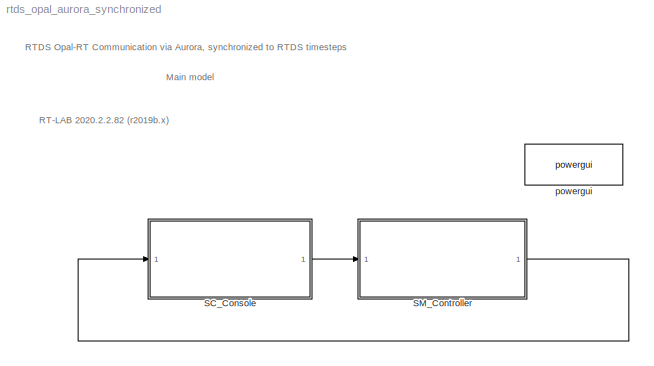
MODEL rtds_opal_aurora_synchronized
KIND model
CONFIG InitFcn = Ts=50e-6;
CONFIG PreLoadFcn = Ts=50e-6;
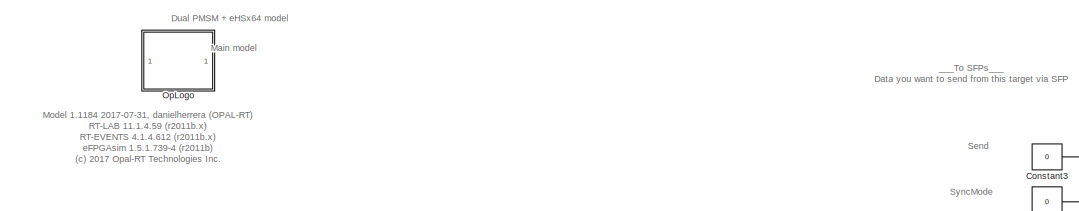
[diagram: SC_Console - part 1/3, full width, top band]
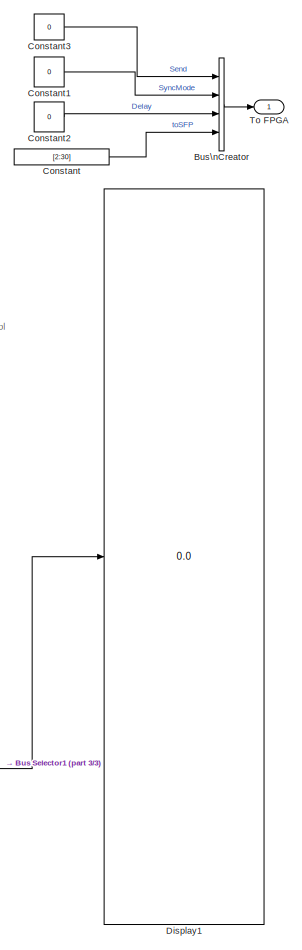
[diagram: SC_Console - part 2/3, middle right region]
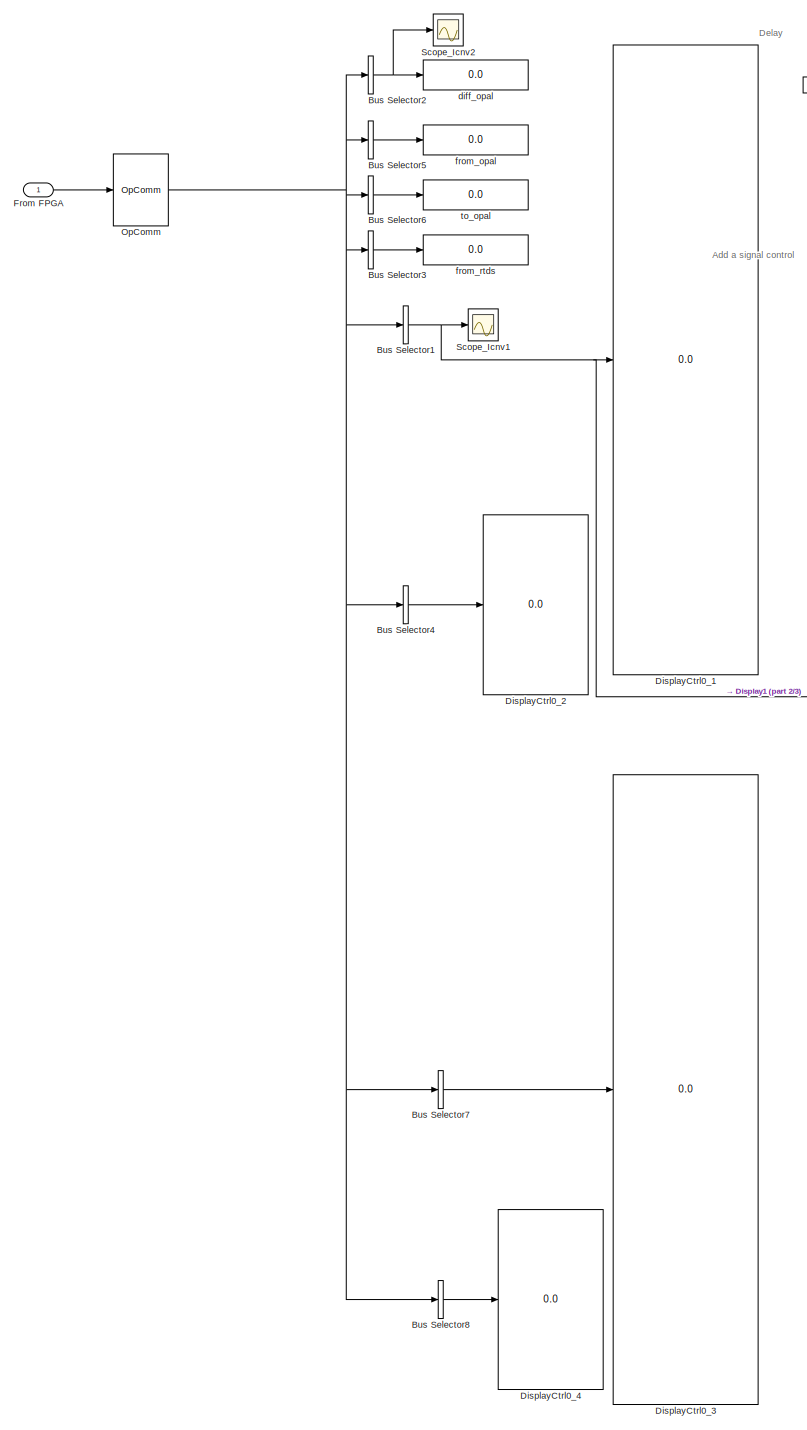
[diagram: SC_Console - part 3/3, center side, full height]
BLOCK [SubSystem] SC_Console
  Ports = [1, 1]
  RequestExecContextInheritance = off
  SID = 2
BLOCK [BusSelector] SC_Console/Bus Selector1
  OutputAsBus = on
  OutputSignals = SFP_RX_Data (signal 2)
  Ports = [1, 1]
  SID = 5
BLOCK [BusSelector] SC_Console/Bus Selector2
  OutputAsBus = on
  OutputSignals = diff_opal (signal 3)
  Ports = [1, 1]
  SID = 6
BLOCK [BusSelector] SC_Console/Bus Selector3
  OutputAsBus = on
  OutputSignals = from_rtds (signal 6)
  Ports = [1, 1]
  SID = 7
BLOCK [BusSelector] SC_Console/Bus Selector4
  OutputAsBus = on
  OutputSignals = SFP_Status (signal 1)
  Ports = [1, 1]
  SID = 8
BLOCK [BusSelector] SC_Console/Bus Selector5
  OutputAsBus = on
  OutputSignals = from_opal (signal 4)
  Ports = [1, 1]
  SID = 9
BLOCK [BusSelector] SC_Console/Bus Selector6
  OutputAsBus = on
  OutputSignals = to_opal (signal 5)
  Ports = [1, 1]
  SID = 10
BLOCK [BusSelector] SC_Console/Bus Selector7
  OutputAsBus = on
  OutputSignals = SFP_RX_Data (signal 8)
  Ports = [1, 1]
  SID = 266
BLOCK [BusSelector] SC_Console/Bus Selector8
  OutputAsBus = on
  OutputSignals = SFP_Status (signal 7)
  Ports = [1, 1]
  SID = 267
BLOCK [BusCreator] SC_Console/Bus\nCreator
  DisplayOption = bar
  InheritFromInputs = on
  Inputs = 4
  Ports = [4, 1]
  SID = 4
BLOCK [Constant] SC_Console/Constant
  SID = 11
  Value = [2:30]
BLOCK [Constant] SC_Console/Constant1
  OutDataTypeStr = double
  SID = 12
  Value = 0
BLOCK [Constant] SC_Console/Constant2
  OutDataTypeStr = double
  SID = 13
  Value = 0
BLOCK [Constant] SC_Console/Constant3
  OutDataTypeStr = double
  SID = 14
  Value = 0
BLOCK [Display] SC_Console/Display1
  Decimation = 1
  Ports = [1]
  SID = 15
BLOCK [Display] SC_Console/DisplayCtrl0_1
  Decimation = 1
  Format = long
  Ports = [1]
  SID = 16
BLOCK [Display] SC_Console/DisplayCtrl0_2
  Decimation = 1
  Ports = [1]
  SID = 17
BLOCK [Display] SC_Console/DisplayCtrl0_3
  Decimation = 1
  Format = long
  Ports = [1]
  SID = 264
BLOCK [Display] SC_Console/DisplayCtrl0_4
  Decimation = 1
  Ports = [1]
  SID = 265
BLOCK [Inport] SC_Console/From FPGA
  IconDisplay = Port number
  SID = 3
BLOCK [Reference] SC_Console/OpComm  REF=rtlab/OpComm
  Interpolation = on
  Missed_Data = off
  Offset = off
  Ports = [1, 1]
  SID = 18
  Samples = off
  Sim_Time = off
  SourceBlock = rtlab/OpComm
  SourceProductName = RT-LAB
  SourceType = RT-LAB OpComm
  Synchronization = on
  Threshold = 1.0
  dynSigOut = off
  from_console = 0
  groupe_acq = 1
  nbport = 1
  st = 0
  subsys_rate = 0
  warning_done = off
  writeOpCommFile = off
BLOCK [SubSystem] SC_Console/OpLogo
  Ports = []
  RequestExecContextInheritance = off
  SID = 19
BLOCK [Scope] SC_Console/Scope_Icnv1
  Floating = off
  NumInputPorts = 1
  Ports = [1]
  SID = 20
  ScopeSpecificationString = Simulink.scopes.TimeScopeBlockCfg('CurrentConfiguration', extmgr.ConfigurationSet(extmgr.Configuration('Core','General UI',true),extmgr.Configuration('Core','Source UI',true),extmgr.Configuration('Sources','WiredSimulink',true,'DataLoggingVariableName','ScopeData1','DataLoggingLimitDataPoints',true,'DataLoggingSaveFormat','Array','DataLoggingDecimation','1','DataLoggingDecimateData',true),extmgr.C...<+1639ch>
BLOCK [Scope] SC_Console/Scope_Icnv2
  Floating = off
  NumInputPorts = 1
  Ports = [1]
  SID = 21
  ScopeSpecificationString = Simulink.scopes.TimeScopeBlockCfg('CurrentConfiguration', extmgr.ConfigurationSet(extmgr.Configuration('Core','General UI',true),extmgr.Configuration('Core','Source UI',true),extmgr.Configuration('Sources','WiredSimulink',true,'DataLoggingVariableName','ScopeData1','DataLoggingLimitDataPoints',true,'DataLoggingSaveFormat','Array','DataLoggingDecimation','1','DataLoggingDecimateData',true),extmgr.C...<+1639ch>
BLOCK [Outport] SC_Console/To FPGA
  IconDisplay = Port number
  SID = 26
BLOCK [Display] SC_Console/diff_opal
  Decimation = 1
  Format = long
  Ports = [1]
  SID = 22
BLOCK [Display] SC_Console/from_opal
  Decimation = 1
  Format = long
  Ports = [1]
  SID = 23
BLOCK [Display] SC_Console/from_rtds
  Decimation = 1
  Format = long
  Ports = [1]
  SID = 24
BLOCK [Display] SC_Console/to_opal
  Decimation = 1
  Format = long
  Ports = [1]
  SID = 25
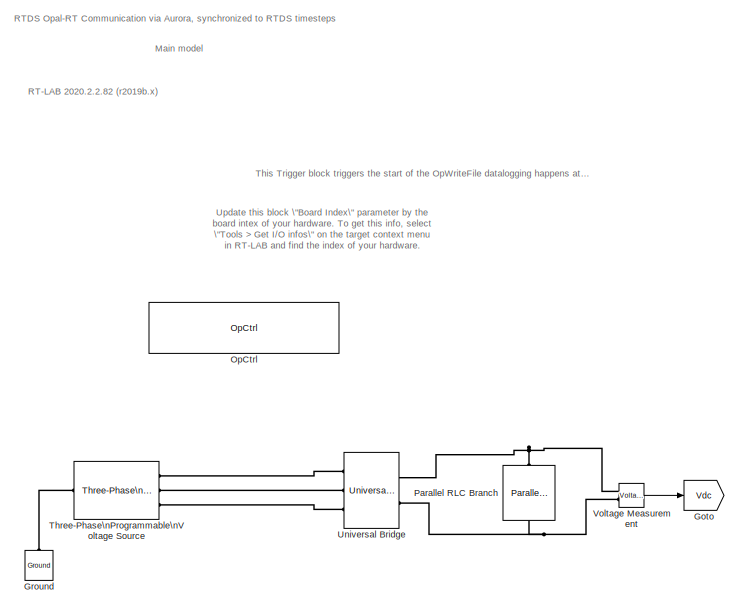
[diagram: SM_Controller - part 1/3, top center region]
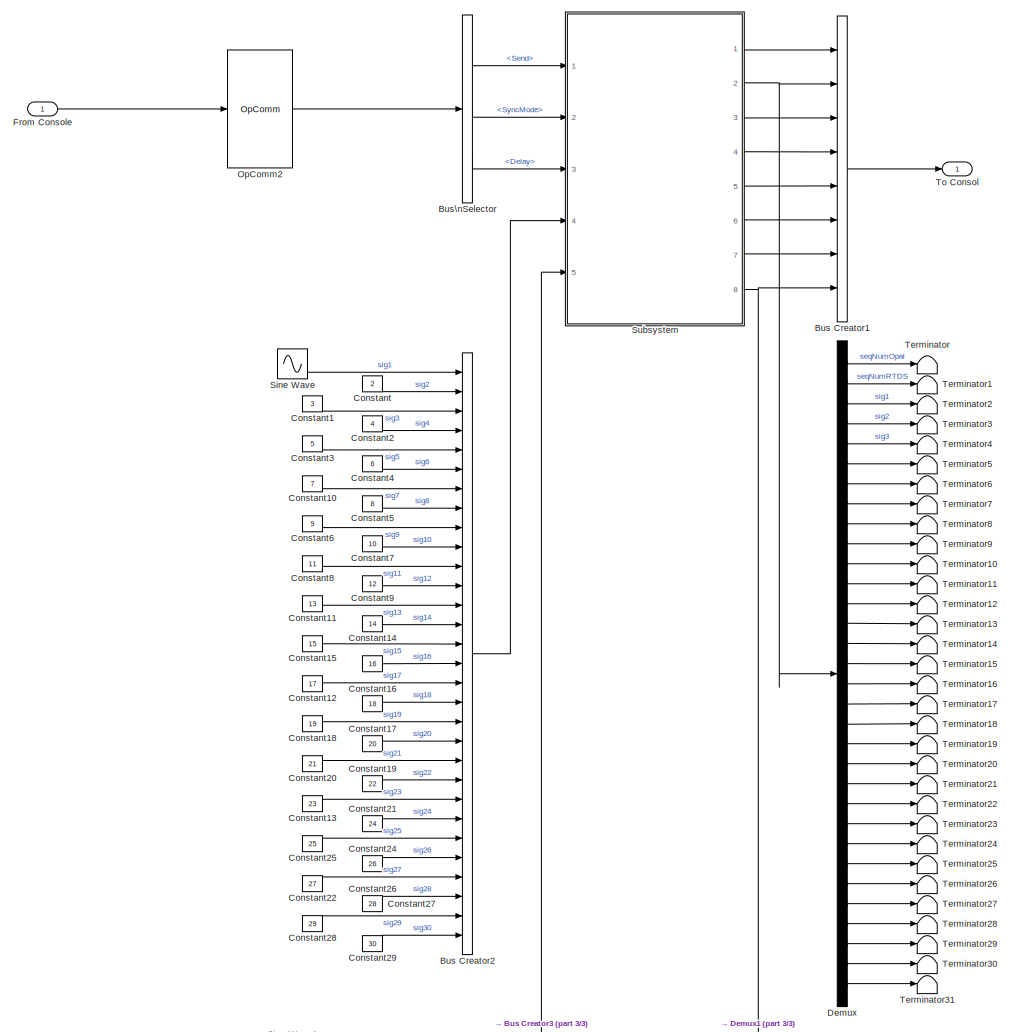
[diagram: SM_Controller - part 2/3, full width, middle band]
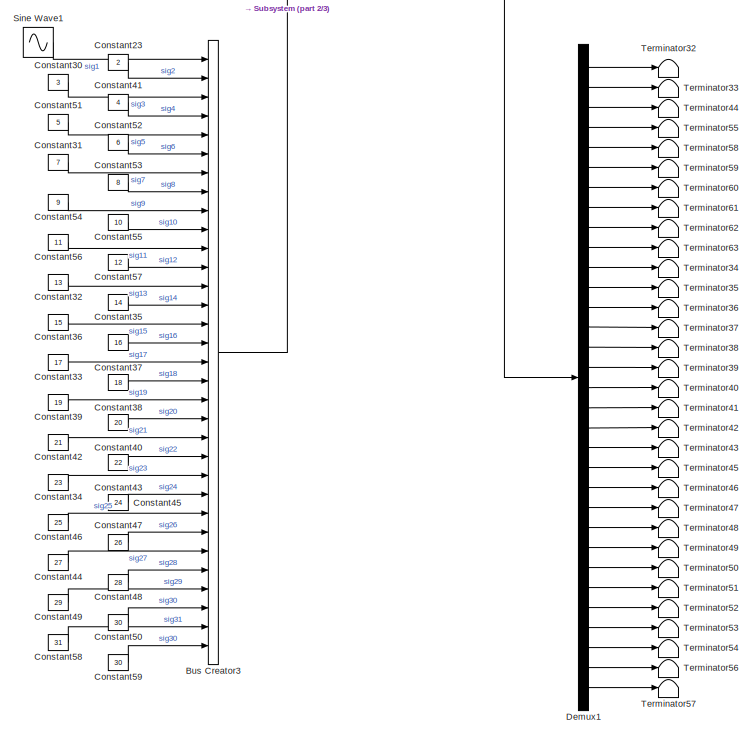
[diagram: SM_Controller - part 3/3, full width, bottom band]
BLOCK [SubSystem] SM_Controller
  Ports = [1, 1]
  RequestExecContextInheritance = off
  SID = 35
BLOCK [BusCreator] SM_Controller/Bus Creator1
  DisplayOption = bar
  InheritFromInputs = on
  Inputs = 8
  Ports = [8, 1]
  SID = 39
BLOCK [BusCreator] SM_Controller/Bus Creator2
  DisplayOption = bar
  InheritFromInputs = on
  Inputs = 30
  Ports = [30, 1]
  SID = 98
BLOCK [BusCreator] SM_Controller/Bus Creator3
  DisplayOption = bar
  InheritFromInputs = on
  Inputs = 32
  Ports = [32, 1]
  SID = 200
BLOCK [BusSelector] SM_Controller/Bus\nSelector
  OutputAsBus = off
  OutputSignals = Send,SyncMode,Delay
  Ports = [1, 3]
  SID = 38
BLOCK [Constant] SM_Controller/Constant
  SID = 100
  Value = 2
BLOCK [Constant] SM_Controller/Constant1
  SID = 101
  Value = 3
BLOCK [Constant] SM_Controller/Constant10
  SID = 110
  Value = 7
BLOCK [Constant] SM_Controller/Constant11
  SID = 111
  Value = 13
BLOCK [Constant] SM_Controller/Constant12
  SID = 122
  Value = 17
BLOCK [Constant] SM_Controller/Constant13
  SID = 123
  Value = 23
BLOCK [Constant] SM_Controller/Constant14
  SID = 124
  Value = 14
BLOCK [Constant] SM_Controller/Constant15
  SID = 125
  Value = 15
BLOCK [Constant] SM_Controller/Constant16
  SID = 126
  Value = 16
BLOCK [Constant] SM_Controller/Constant17
  SID = 127
  Value = 18
BLOCK [Constant] SM_Controller/Constant18
  SID = 128
  Value = 19
BLOCK [Constant] SM_Controller/Constant19
  SID = 129
  Value = 20
BLOCK [Constant] SM_Controller/Constant2
  SID = 102
  Value = 4
BLOCK [Constant] SM_Controller/Constant20
  SID = 130
  Value = 21
BLOCK [Constant] SM_Controller/Constant21
  SID = 131
  Value = 22
BLOCK [Constant] SM_Controller/Constant22
  SID = 142
  Value = 27
BLOCK [Constant] SM_Controller/Constant23
  SID = 201
  Value = 2
BLOCK [Constant] SM_Controller/Constant24
  SID = 144
  Value = 24
BLOCK [Constant] SM_Controller/Constant25
  SID = 145
  Value = 25
BLOCK [Constant] SM_Controller/Constant26
  SID = 146
  Value = 26
BLOCK [Constant] SM_Controller/Constant27
  SID = 147
  Value = 28
BLOCK [Constant] SM_Controller/Constant28
  SID = 148
  Value = 29
BLOCK [Constant] SM_Controller/Constant29
  SID = 278
  Value = 30
BLOCK [Constant] SM_Controller/Constant3
  SID = 103
  Value = 5
BLOCK [Constant] SM_Controller/Constant30
  SID = 202
  Value = 3
BLOCK [Constant] SM_Controller/Constant31
  SID = 203
  Value = 7
BLOCK [Constant] SM_Controller/Constant32
  SID = 204
  Value = 13
BLOCK [Constant] SM_Controller/Constant33
  SID = 205
  Value = 17
BLOCK [Constant] SM_Controller/Constant34
  SID = 206
  Value = 23
BLOCK [Constant] SM_Controller/Constant35
  SID = 207
  Value = 14
BLOCK [Constant] SM_Controller/Constant36
  SID = 208
  Value = 15
BLOCK [Constant] SM_Controller/Constant37
  SID = 209
  Value = 16
BLOCK [Constant] SM_Controller/Constant38
  SID = 210
  Value = 18
BLOCK [Constant] SM_Controller/Constant39
  SID = 211
  Value = 19
BLOCK [Constant] SM_Controller/Constant4
  SID = 104
  Value = 6
BLOCK [Constant] SM_Controller/Constant40
  SID = 212
  Value = 20
BLOCK [Constant] SM_Controller/Constant41
  SID = 213
  Value = 4
BLOCK [Constant] SM_Controller/Constant42
  SID = 214
  Value = 21
BLOCK [Constant] SM_Controller/Constant43
  SID = 215
  Value = 22
BLOCK [Constant] SM_Controller/Constant44
  SID = 216
  Value = 27
BLOCK [Constant] SM_Controller/Constant45
  SID = 217
  Value = 24
BLOCK [Constant] SM_Controller/Constant46
  SID = 218
  Value = 25
BLOCK [Constant] SM_Controller/Constant47
  SID = 219
  Value = 26
BLOCK [Constant] SM_Controller/Constant48
  SID = 220
  Value = 28
BLOCK [Constant] SM_Controller/Constant49
  SID = 221
  Value = 29
BLOCK [Constant] SM_Controller/Constant5
  SID = 105
  Value = 8
BLOCK [Constant] SM_Controller/Constant50
  SID = 222
  Value = 30
BLOCK [Constant] SM_Controller/Constant51
  SID = 223
  Value = 5
BLOCK [Constant] SM_Controller/Constant52
  SID = 224
  Value = 6
BLOCK [Constant] SM_Controller/Constant53
  SID = 225
  Value = 8
BLOCK [Constant] SM_Controller/Constant54
  SID = 226
  Value = 9
BLOCK [Constant] SM_Controller/Constant55
  SID = 227
  Value = 10
BLOCK [Constant] SM_Controller/Constant56
  SID = 228
  Value = 11
BLOCK [Constant] SM_Controller/Constant57
  SID = 229
  Value = 12
BLOCK [Constant] SM_Controller/Constant58
  SID = 268
  Value = 31
BLOCK [Constant] SM_Controller/Constant59
  SID = 269
  Value = 30
BLOCK [Constant] SM_Controller/Constant6
  SID = 106
  Value = 9
BLOCK [Constant] SM_Controller/Constant7
  SID = 107
  Value = 10
BLOCK [Constant] SM_Controller/Constant8
  SID = 108
  Value = 11
BLOCK [Constant] SM_Controller/Constant9
  SID = 109
  Value = 12
BLOCK [Demux] SM_Controller/Demux
  DisplayOption = bar
  Outputs = 32
  Ports = [1, 32]
  SID = 154
BLOCK [Demux] SM_Controller/Demux1
  DisplayOption = bar
  Outputs = 32
  Ports = [1, 32]
  SID = 231
BLOCK [Inport] SM_Controller/From Console
  IconDisplay = Port number
  SID = 36
BLOCK [Goto] SM_Controller/Goto
  GotoTag = Vdc
  SID = 54
BLOCK [Reference] SM_Controller/Ground  REF=powerlib/Elements/Ground
  LConnTagsString = a
  Ports = [0, 0, 0, 0, 0, 1]
  SID = 55
  SourceBlock = powerlib/Elements/Ground
  SourceProductBaseCode = PS
  SourceProductName = Simscape Electrical
  SourceType = Ground
BLOCK [Reference] SM_Controller/OpComm2  REF=rtlab/OpComm
  Interpolation = on
  Missed_Data = off
  Offset = off
  Ports = [1, 1]
  SID = 59
  Samples = off
  Sim_Time = off
  SourceBlock = rtlab/OpComm
  SourceProductName = RT-LAB
  SourceType = RT-LAB OpComm
  Synchronization = on
  Threshold = 1.0
  dynSigOut = off
  from_console = 1
  groupe_acq = 1
  nbport = 1
  st = 0
  subsys_rate = Ts
  warning_done = off
  writeOpCommFile = off
BLOCK [Reference] SM_Controller/OpCtrl  REF=rtio_opalrt_common/OpCtrl
  BitstreamFilename = <path>
  BoardType = VC707
  CtrlName = 'OpCtrl'
  MultiThreadCoSim = auto
  Ports = [0, 2]
  SID = 60
  SampleTime = 0
  SecondaryPresent = off
  SourceBlock = rtio_opalrt_common/OpCtrl
  SourceType = OpCtrlCommonMask
  boardid = 0
  calibIO = off
  decimRtsi = 0
  externalClock = off
  fsdFileName = VC707_2-EX-0001-3_2_10_45-DUALSFP-02-24.fsd
  loadinport = -1
  mode = Master with external clock
  numconfig = -1
  scope_enable = off
  sync_type = Optical fiber
BLOCK [Reference] SM_Controller/Parallel RLC Branch  REF=powerlib/Elements/Parallel RLC Branch
  AttributesFormatString = \\n
  BranchType = RC
  Capacitance = 10e-3
  Inductance = 1e-3
  InitialCurrent = 0
  InitialVoltage = 0
  LConnTagsString = a
  Measurements = None
  Ports = [0, 0, 0, 0, 0, 1, 1]
  RConnTagsString = __new0
  Resistance = 100
  SID = 62
  SetiL0 = off
  Setx0 = off
  SourceBlock = powerlib/Elements/Parallel RLC Branch
  SourceProductBaseCode = PS
  SourceProductName = Simscape Electrical
  SourceType = Parallel RLC Branch
BLOCK [Sin] SM_Controller/Sine Wave
  Amplitude = 10
  Frequency = 50*pi*2
  Ports = [0, 1]
  SID = 65
  SampleTime = 0
BLOCK [Sin] SM_Controller/Sine Wave1
  Amplitude = 10
  Frequency = 50*pi*2
  Ports = [0, 1]
  SID = 230
  SampleTime = 0
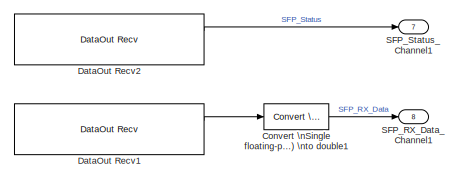
[diagram: SM_Controller/Subsystem - part 1/3, top left region]
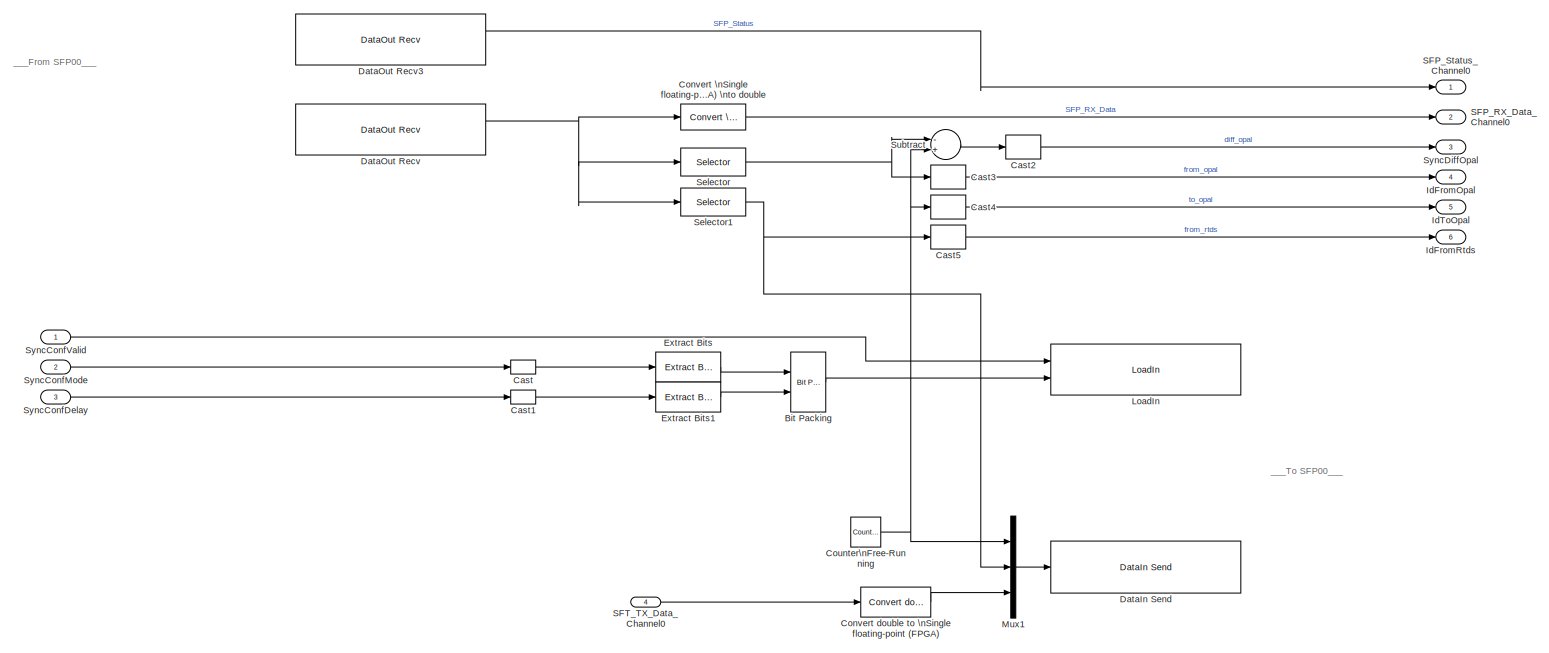
[diagram: SM_Controller/Subsystem - part 2/3, full width, middle band]
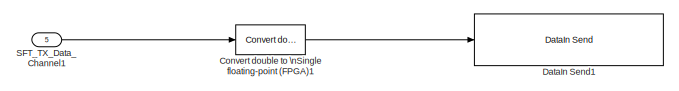
[diagram: SM_Controller/Subsystem - part 3/3, bottom center region]
BLOCK [SubSystem] SM_Controller/Subsystem
  Ports = [5, 8]
  RequestExecContextInheritance = off
  SID = 82
BLOCK [Reference] SM_Controller/Subsystem/Bit Packing   REF=xpcutilitieslib/Bit Packing 
  MaskBitPatterns = {[0:2] [3:22]}
  MaskPackDataSize = [1]
  MaskPackDataType = uint32
  MultiThreadCoSim = auto
  Ports = [2, 1]
  SID = 37
  SourceBlock = xpcutilitieslib/Bit Packing
  SourceProductBaseCode = XP
  SourceProductName = Simulink Real-Time
  SourceType = xpcbitpacking
BLOCK [DataTypeConversion] SM_Controller/Subsystem/Cast
  OutDataTypeStr = int8
  RndMeth = Floor
  SID = 40
  SaturateOnIntegerOverflow = off
BLOCK [DataTypeConversion] SM_Controller/Subsystem/Cast1
  OutDataTypeStr = uint32
  RndMeth = Floor
  SID = 41
  SaturateOnIntegerOverflow = off
BLOCK [DataTypeConversion] SM_Controller/Subsystem/Cast2
  OutDataTypeStr = double
  RndMeth = Floor
  SID = 42
  SaturateOnIntegerOverflow = off
BLOCK [DataTypeConversion] SM_Controller/Subsystem/Cast3
  OutDataTypeStr = double
  RndMeth = Floor
  SID = 43
  SaturateOnIntegerOverflow = off
BLOCK [DataTypeConversion] SM_Controller/Subsystem/Cast4
  OutDataTypeStr = double
  RndMeth = Floor
  SID = 44
  SaturateOnIntegerOverflow = off
BLOCK [DataTypeConversion] SM_Controller/Subsystem/Cast5
  OutDataTypeStr = double
  RndMeth = Floor
  SID = 45
  SaturateOnIntegerOverflow = off
BLOCK [Reference] SM_Controller/Subsystem/Convert \nSingle floating-point (FPGA) \nto double  REF=rtlab/Miscellaneous/Convert \nSingle floating-point (FPGA) \nto double
  MultiThreadCoSim = auto
  Ports = [1, 1]
  SID = 46
  SourceBlock = rtlab/Miscellaneous/Convert \nSingle floating-point (FPGA) \nto double
  SourceProductName = RT-LAB
  SourceType = Convert Single floating-point (FPGA) to double
BLOCK [Reference] SM_Controller/Subsystem/Convert \nSingle floating-point (FPGA) \nto double1  REF=rtlab/Miscellaneous/Convert \nSingle floating-point (FPGA) \nto double
  MultiThreadCoSim = auto
  Ports = [1, 1]
  SID = 199
  SourceBlock = rtlab/Miscellaneous/Convert \nSingle floating-point (FPGA) \nto double
  SourceProductName = RT-LAB
  SourceType = Convert Single floating-point (FPGA) to double
BLOCK [Reference] SM_Controller/Subsystem/Convert double to \nSingle floating-point (FPGA)  REF=rtlab/Miscellaneous/Convert double to \nSingle floating-point (FPGA)
  MultiThreadCoSim = auto
  Ports = [1, 1]
  SID = 47
  SourceBlock = rtlab/Miscellaneous/Convert double to \nSingle floating-point (FPGA)
  SourceProductName = RT-LAB
  SourceType = Convert double to Single floating-point (FPGA)
BLOCK [Reference] SM_Controller/Subsystem/Convert double to \nSingle floating-point (FPGA)1  REF=rtlab/Miscellaneous/Convert double to \nSingle floating-point (FPGA)
  MultiThreadCoSim = auto
  Ports = [1, 1]
  SID = 193
  SourceBlock = rtlab/Miscellaneous/Convert double to \nSingle floating-point (FPGA)
  SourceProductName = RT-LAB
  SourceType = Convert double to Single floating-point (FPGA)
BLOCK [Reference] SM_Controller/Subsystem/Counter\nFree-Running  REF=simulink/Sources/Counter\nFree-Running
  NumBits = 32
  Ports = [0, 1]
  SID = 48
  SourceBlock = simulink/Sources/Counter\nFree-Running
  SourceProductBaseCode = SL
  SourceProductName = Simulink
  SourceType = Counter Free-Running
  tsamp = Ts
BLOCK [Reference] SM_Controller/Subsystem/DataIn Send  REF=rtio_opalrt_common/DataIn Send
  AttributesFormatString = %<CtrlName>
  CtrlName = 'OpCtrl'
  FcnNos = 1
  MultiThreadCoSim = auto
  Ports = [1, 1]
  SID = 49
  SourceBlock = rtio_opalrt_common/DataIn Send
  SourceType = OpFcnCommonSend
  checkVersion = off
  expectedId = 0
  expectedVersion = 0
  opComp = >=
  portType = uint32
  width = 32
BLOCK [Reference] SM_Controller/Subsystem/DataIn Send1  REF=rtio_opalrt_common/DataIn Send
  AttributesFormatString = %<CtrlName>
  CtrlName = 'OpCtrl'
  FcnNos = 2
  MultiThreadCoSim = auto
  Ports = [1, 1]
  SID = 191
  SourceBlock = rtio_opalrt_common/DataIn Send
  SourceType = OpFcnCommonSend
  checkVersion = off
  expectedId = 0
  expectedVersion = 0
  opComp = >=
  portType = uint32
  width = 32
BLOCK [Reference] SM_Controller/Subsystem/DataOut Recv  REF=rtio_opalrt_common/DataOut Recv
  AttributesFormatString = %<CtrlName>
  CtrlName = 'OpCtrl'
  FcnNos = 1
  MultiThreadCoSim = auto
  Ports = [0, 2]
  SID = 50
  SourceBlock = rtio_opalrt_common/DataOut Recv
  SourceType = OpFcnCommonRecv
  checkVersion = off
  expectedId = 0
  expectedVersion = 0
  opComp = >=
  portType = uint32
  sampleTime = 0
  width = 32
BLOCK [Reference] SM_Controller/Subsystem/DataOut Recv1  REF=rtio_opalrt_common/DataOut Recv
  AttributesFormatString = %<CtrlName>
  CtrlName = 'OpCtrl'
  FcnNos = 3
  MultiThreadCoSim = auto
  Ports = [0, 2]
  SID = 195
  SourceBlock = rtio_opalrt_common/DataOut Recv
  SourceType = OpFcnCommonRecv
  checkVersion = off
  expectedId = 0
  expectedVersion = 0
  opComp = >=
  portType = uint32
  sampleTime = 0
  width = 32
BLOCK [Reference] SM_Controller/Subsystem/DataOut Recv2  REF=rtio_opalrt_common/DataOut Recv
  AttributesFormatString = %<CtrlName>
  CtrlName = 'OpCtrl'
  FcnNos = 4
  MultiThreadCoSim = auto
  Ports = [0, 2]
  SID = 196
  SourceBlock = rtio_opalrt_common/DataOut Recv
  SourceType = OpFcnCommonRecv
  checkVersion = off
  expectedId = 0
  expectedVersion = 0
  opComp = >=
  portType = double
  sampleTime = 0
  width = 5
BLOCK [Reference] SM_Controller/Subsystem/DataOut Recv3  REF=rtio_opalrt_common/DataOut Recv
  AttributesFormatString = %<CtrlName>
  CtrlName = 'OpCtrl'
  FcnNos = 2
  MultiThreadCoSim = auto
  Ports = [0, 2]
  SID = 51
  SourceBlock = rtio_opalrt_common/DataOut Recv
  SourceType = OpFcnCommonRecv
  checkVersion = off
  expectedId = 0
  expectedVersion = 0
  opComp = >=
  portType = double
  sampleTime = 0
  width = 5
BLOCK [Reference] SM_Controller/Subsystem/Extract Bits  REF=simulink/Logic and Bit\nOperations/Extract Bits
  Ports = [1, 1]
  SID = 52
  SourceBlock = simulink/Logic and Bit\nOperations/Extract Bits
  SourceProductBaseCode = SL
  SourceProductName = Simulink
  SourceType = Extract Bits
  bitIdxRange = [0 7]
  bitsToExtract = Range ending with least significant bit
  numBits = 3
  outScalingMode = Treat bit field as an integer
BLOCK [Reference] SM_Controller/Subsystem/Extract Bits1  REF=simulink/Logic and Bit\nOperations/Extract Bits
  Ports = [1, 1]
  SID = 53
  SourceBlock = simulink/Logic and Bit\nOperations/Extract Bits
  SourceProductBaseCode = SL
  SourceProductName = Simulink
  SourceType = Extract Bits
  bitIdxRange = [0 7]
  bitsToExtract = Range ending with least significant bit
  numBits = 20
  outScalingMode = Treat bit field as an integer
BLOCK [Outport] SM_Controller/Subsystem/IdFromOpal
  IconDisplay = Port number
  Port = 4
  SID = 92
BLOCK [Outport] SM_Controller/Subsystem/IdFromRtds
  IconDisplay = Port number
  Port = 6
  SID = 94
BLOCK [Outport] SM_Controller/Subsystem/IdToOpal
  IconDisplay = Port number
  Port = 5
  SID = 93
BLOCK [Reference] SM_Controller/Subsystem/LoadIn  REF=rtio_opalrt_common/LoadIn
  AttributesFormatString = %<CtrlName>
  CtrlName = 'OpCtrl'
  FcnNos = 1
  MultiThreadCoSim = auto
  Ports = [2, 1]
  SID = 56
  SourceBlock = rtio_opalrt_common/LoadIn
  SourceType = OpFcnCommonLoadIn
  portType = uint32
  width = 1
BLOCK [Mux] SM_Controller/Subsystem/Mux1
  DisplayOption = bar
  Inputs = 3
  Ports = [3, 1]
  SID = 57
BLOCK [Outport] SM_Controller/Subsystem/SFP_RX_Data_Channel0
  IconDisplay = Port number
  Port = 2
  SID = 89
BLOCK [Outport] SM_Controller/Subsystem/SFP_RX_Data_Channel1
  IconDisplay = Port number
  Port = 8
  SID = 198
BLOCK [Outport] SM_Controller/Subsystem/SFP_Status_Channel0
  IconDisplay = Port number
  SID = 88
BLOCK [Outport] SM_Controller/Subsystem/SFP_Status_Channel1
  IconDisplay = Port number
  Port = 7
  SID = 197
BLOCK [Inport] SM_Controller/Subsystem/SFT_TX_Data_Channel0
  IconDisplay = Port number
  Port = 4
  SID = 86
BLOCK [Inport] SM_Controller/Subsystem/SFT_TX_Data_Channel1
  IconDisplay = Port number
  Port = 5
  SID = 192
BLOCK [Selector] SM_Controller/Subsystem/Selector
  IndexOptions = Index vector (dialog)
  Indices = [1]
  InputPortWidth = 32
  OutputSizes = 1
  Ports = [1, 1]
  SID = 63
BLOCK [Selector] SM_Controller/Subsystem/Selector1
  IndexOptions = Index vector (dialog)
  Indices = [32]
  InputPortWidth = 32
  OutputSizes = 1
  Ports = [1, 1]
  SID = 64
BLOCK [Sum] SM_Controller/Subsystem/Subtract
  InputSameDT = off
  Inputs = -+
  OutDataTypeStr = Inherit: Inherit via internal rule
  Ports = [2, 1]
  SID = 66
  SaturateOnIntegerOverflow = off
BLOCK [Inport] SM_Controller/Subsystem/SyncConfDelay
  IconDisplay = Port number
  Port = 3
  SID = 85
BLOCK [Inport] SM_Controller/Subsystem/SyncConfMode
  IconDisplay = Port number
  Port = 2
  SID = 84
BLOCK [Inport] SM_Controller/Subsystem/SyncConfValid
  IconDisplay = Port number
  SID = 83
BLOCK [Outport] SM_Controller/Subsystem/SyncDiffOpal
  IconDisplay = Port number
  Port = 3
  SID = 91
BLOCK [Terminator] SM_Controller/Terminator
  SID = 159
BLOCK [Terminator] SM_Controller/Terminator1
  SID = 160
BLOCK [Terminator] SM_Controller/Terminator10
  SID = 169
BLOCK [Terminator] SM_Controller/Terminator11
  SID = 170
BLOCK [Terminator] SM_Controller/Terminator12
  SID = 171
BLOCK [Terminator] SM_Controller/Terminator13
  SID = 172
BLOCK [Terminator] SM_Controller/Terminator14
  SID = 173
BLOCK [Terminator] SM_Controller/Terminator15
  SID = 174
BLOCK [Terminator] SM_Controller/Terminator16
  SID = 175
BLOCK [Terminator] SM_Controller/Terminator17
  SID = 176
BLOCK [Terminator] SM_Controller/Terminator18
  SID = 177
BLOCK [Terminator] SM_Controller/Terminator19
  SID = 178
BLOCK [Terminator] SM_Controller/Terminator2
  SID = 161
BLOCK [Terminator] SM_Controller/Terminator20
  SID = 179
BLOCK [Terminator] SM_Controller/Terminator21
  SID = 180
BLOCK [Terminator] SM_Controller/Terminator22
  SID = 181
BLOCK [Terminator] SM_Controller/Terminator23
  SID = 182
BLOCK [Terminator] SM_Controller/Terminator24
  SID = 183
BLOCK [Terminator] SM_Controller/Terminator25
  SID = 184
BLOCK [Terminator] SM_Controller/Terminator26
  SID = 185
BLOCK [Terminator] SM_Controller/Terminator27
  SID = 186
BLOCK [Terminator] SM_Controller/Terminator28
  SID = 187
BLOCK [Terminator] SM_Controller/Terminator29
  SID = 188
BLOCK [Terminator] SM_Controller/Terminator3
  SID = 162
BLOCK [Terminator] SM_Controller/Terminator30
  SID = 189
BLOCK [Terminator] SM_Controller/Terminator31
  SID = 190
BLOCK [Terminator] SM_Controller/Terminator32
  SID = 232
BLOCK [Terminator] SM_Controller/Terminator33
  SID = 233
BLOCK [Terminator] SM_Controller/Terminator34
  SID = 234
BLOCK [Terminator] SM_Controller/Terminator35
  SID = 235
BLOCK [Terminator] SM_Controller/Terminator36
  SID = 236
BLOCK [Terminator] SM_Controller/Terminator37
  SID = 237
BLOCK [Terminator] SM_Controller/Terminator38
  SID = 238
BLOCK [Terminator] SM_Controller/Terminator39
  SID = 239
BLOCK [Terminator] SM_Controller/Terminator4
  SID = 163
BLOCK [Terminator] SM_Controller/Terminator40
  SID = 240
BLOCK [Terminator] SM_Controller/Terminator41
  SID = 241
BLOCK [Terminator] SM_Controller/Terminator42
  SID = 242
BLOCK [Terminator] SM_Controller/Terminator43
  SID = 243
BLOCK [Terminator] SM_Controller/Terminator44
  SID = 244
BLOCK [Terminator] SM_Controller/Terminator45
  SID = 245
BLOCK [Terminator] SM_Controller/Terminator46
  SID = 246
BLOCK [Terminator] SM_Controller/Terminator47
  SID = 247
BLOCK [Terminator] SM_Controller/Terminator48
  SID = 248
BLOCK [Terminator] SM_Controller/Terminator49
  SID = 249
BLOCK [Terminator] SM_Controller/Terminator5
  SID = 164
BLOCK [Terminator] SM_Controller/Terminator50
  SID = 250
BLOCK [Terminator] SM_Controller/Terminator51
  SID = 251
BLOCK [Terminator] SM_Controller/Terminator52
  SID = 252
BLOCK [Terminator] SM_Controller/Terminator53
  SID = 253
BLOCK [Terminator] SM_Controller/Terminator54
  SID = 254
BLOCK [Terminator] SM_Controller/Terminator55
  SID = 255
BLOCK [Terminator] SM_Controller/Terminator56
  SID = 256
BLOCK [Terminator] SM_Controller/Terminator57
  SID = 257
BLOCK [Terminator] SM_Controller/Terminator58
  SID = 258
BLOCK [Terminator] SM_Controller/Terminator59
  SID = 259
BLOCK [Terminator] SM_Controller/Terminator6
  SID = 165
BLOCK [Terminator] SM_Controller/Terminator60
  SID = 260
BLOCK [Terminator] SM_Controller/Terminator61
  SID = 261
BLOCK [Terminator] SM_Controller/Terminator62
  SID = 262
BLOCK [Terminator] SM_Controller/Terminator63
  SID = 263
BLOCK [Terminator] SM_Controller/Terminator7
  SID = 166
BLOCK [Terminator] SM_Controller/Terminator8
  SID = 167
BLOCK [Terminator] SM_Controller/Terminator9
  SID = 168
BLOCK [Reference] SM_Controller/Three-Phase\nProgrammable\nVoltage Source  REF=powerlib/Electrical\nSources/Three-Phase\nProgrammable\nVoltage Source
  Amplitudes = [1 0.8 1.2 1.0]
  BusType = swing
  HarmonicA = [3 0.2 -25 0]
  HarmonicB = [2 0.15 35 2]
  HarmonicGeneration = off
  Ports = [0, 0, 0, 0, 0, 1, 3]
  PositiveSequence = [90  0 60]
  Pref = 0
  Qmax = inf
  Qmin = -inf
  Qref = 0
  SID = 67
  SourceBlock = powerlib/Electrical\nSources/Three-Phase\nProgrammable\nVoltage Source
  SourceProductBaseCode = PS
  SourceProductName = Simscape Electrical
  SourceType = Three-Phase Programmable Voltage Source
  TimeValues = [0 0.1 0.15 0.2]
  Timing = [0.05  3]
  VariationEntity = None
  VariationFrequency = 2
  VariationMagnitude = 0.3
  VariationPhaseA = off
  VariationRate = 10
  VariationStep = 0.5
  VariationTiming = [1 2]
  VariationType = Table of time-amplitude pairs
  VariationTypeAlt = Step
BLOCK [Outport] SM_Controller/To Consol
  IconDisplay = Port number
  SID = 70
BLOCK [Reference] SM_Controller/Universal Bridge  REF=powerlib/Power\nElectronics/Universal Bridge
  Arms = 3
  Device = Diodes
  ForwardVoltage = 0
  ForwardVoltages = [  0  0  ]
  GTOparameters = [ 10e-6 , 20e-6 ]
  IGBTparameters = [ 1e-6 , 2e-6 ]
  Lon = 0
  Measurements = None
  Measurements_2 = None
  Ports = [0, 0, 0, 0, 0, 3, 2]
  Ron = 1e-3
  SID = 68
  SnubberCapacitance = inf
  SnubberResistance = 1e5
  SourceBlock = powerlib/Power\nElectronics/Universal Bridge
  SourceProductBaseCode = PS
  SourceProductName = Simscape Electrical
  SourceType = Universal Bridge
  converterType = Rectifier
BLOCK [Reference] SM_Controller/Voltage Measurement  REF=powerlib/Measurements/Voltage Measurement
  OutputType = Complex
  PSBequivalent = 0
  PhasorSimulation = off
  Ports = [0, 1, 0, 0, 0, 2]
  SID = 69
  SourceBlock = powerlib/Measurements/Voltage Measurement
  SourceProductBaseCode = PS
  SourceProductName = Simscape Electrical
  SourceType = Voltage Measurement
  UserDataPersistent = on
BLOCK [Reference] powergui  REF=powerlib/powergui
  AutomaticDiscreteSolvers = off
  ContinueOnMaxIteration = off
  CurrentSourceSwitches = off
  DisableRonSwitches = off
  DisableSnubberDevices = off
  DisableVfSwitches = off
  DisplayEquations = off
  DisplayStyle = 1
  EnableUseOfTLC = off
  ErrMax = 1e-4
  ExternalGateDelay = off
  Frange = [0:2:500]
  FreqAxis = off
  FunctionMessages = off
  HookPort = off
  Interpol = off
  Iterations = 50
  MaxFrequency = 1000
  NonlinearTolerance = 1e-4
  Pbase = 100e6
  Ports = []
  Priority = 1
  ResistiveCurrentMeasurement = off
  RestoreLinks = warning
  RmsSteady = 1
  SID = 78
  SPID = off
  SampleTime = Ts
  ShowGrid = off
  SolverType = Backward Euler
  SourceBlock = powerlib/powergui
  SourceProductBaseCode = PS
  SourceProductName = Simscape Electrical
  SourceType = PSB option menu block
  StartTime = 0.0
  SwTol = 0
  Ts = 0
  UnitsV = kV
  UnitsW = MW
  Xlog = on
  Ylog = off
  ZoomFFT = off
  buscounter = 0
  cycles = 1
  display = off
  echomessages = off
  frequency = 60
  frequencyindice = 60
  frequencyindicesteady = 1
  fundamental = 60
  methode = off
  nMaxIteration = 100
  save = off
  structure = 0
  variable = ZData
  x0status = blocks
ANNOTATION (root): Main model
ANNOTATION (root): RT-LAB 2020.2.2.82 (r2019b.x)\n
ANNOTATION (root): RTDS Opal-RT Communication via Aurora, synchronized to RTDS timesteps
ANNOTATION SC_Console: Add a signal control
ANNOTATION SC_Console: Delay
ANNOTATION SC_Console: Dual PMSM + eHSx64 model
ANNOTATION SC_Console: Main model
ANNOTATION SC_Console: Model 1.1184 2017-07-31, danielherrera (OPAL-RT)\nRT-LAB 11.1.4.59 (r2011b.x)\nRT-EVENTS 4.1.4.612 (r2011b.x)\neFPGAsim 1.5.1.739-4 (r2011b)\n(c) 2017 Opal-RT Technologies Inc.
ANNOTATION SC_Console: Send
ANNOTATION SC_Console: SyncMode
ANNOTATION SC_Console: ___To SFPs___\nData you want to send from this target via SFP
ANNOTATION SM_Controller: Main model
ANNOTATION SM_Controller: RT-LAB 2020.2.2.82 (r2019b.x)\n
ANNOTATION SM_Controller: RTDS Opal-RT Communication via Aurora, synchronized to RTDS timesteps
ANNOTATION SM_Controller: This Trigger block triggers the start of the OpWriteFile datalogging happens at t=0. Change the value of StartDataloggingTriggerTime to have it trigerred at another time.
ANNOTATION SM_Controller: Update this block \"Board Index\" parameter by the \nboard intex of your hardware. To get this info, select \n\"Tools > Get I/O infos\" on the target context menu \nin RT-LAB and find the index of your hardware.
ANNOTATION SM_Controller/Subsystem: ___From SFP00___
ANNOTATION SM_Controller/Subsystem: ___To SFP00___
NET SC_Console/Bus Selector1:1 -> SC_Console/Display1:1, SC_Console/DisplayCtrl0_1:1, SC_Console/Scope_Icnv1:1
NET SC_Console/Bus Selector2:1 -> SC_Console/Scope_Icnv2:1, SC_Console/diff_opal:1
LINE SC_Console/Bus Selector3:1 -> SC_Console/from_rtds:1
LINE SC_Console/Bus Selector4:1 -> SC_Console/DisplayCtrl0_2:1
LINE SC_Console/Bus Selector5:1 -> SC_Console/from_opal:1
LINE SC_Console/Bus Selector6:1 -> SC_Console/to_opal:1
LINE SC_Console/Bus Selector7:1 -> SC_Console/DisplayCtrl0_3:1
LINE SC_Console/Bus Selector8:1 -> SC_Console/DisplayCtrl0_4:1
LINE SC_Console/Bus\nCreator:1 -> SC_Console/To FPGA:1
LINE SC_Console/Constant1:1 -> SC_Console/Bus\nCreator:2
LINE SC_Console/Constant2:1 -> SC_Console/Bus\nCreator:3
LINE SC_Console/Constant3:1 -> SC_Console/Bus\nCreator:1
LINE SC_Console/Constant:1 -> SC_Console/Bus\nCreator:4
LINE SC_Console/From FPGA:1 -> SC_Console/OpComm:1
NET SC_Console/OpComm:1 -> SC_Console/Bus Selector1:1, SC_Console/Bus Selector2:1, SC_Console/Bus Selector3:1, SC_Console/Bus Selector4:1, SC_Console/Bus Selector5:1, SC_Console/Bus Selector6:1, SC_Console/Bus Selector7:1, SC_Console/Bus Selector8:1
LINE SC_Console:1 -> SM_Controller:1
LINE SM_Controller/Bus Creator1:1 -> SM_Controller/To Consol:1
LINE SM_Controller/Bus Creator2:1 -> SM_Controller/Subsystem:4
LINE SM_Controller/Bus Creator3:1 -> SM_Controller/Subsystem:5
LINE SM_Controller/Bus\nSelector:1 -> SM_Controller/Subsystem:1
LINE SM_Controller/Bus\nSelector:2 -> SM_Controller/Subsystem:2
LINE SM_Controller/Bus\nSelector:3 -> SM_Controller/Subsystem:3
LINE SM_Controller/Constant10:1 -> SM_Controller/Bus Creator2:7
LINE SM_Controller/Constant11:1 -> SM_Controller/Bus Creator2:13
LINE SM_Controller/Constant12:1 -> SM_Controller/Bus Creator2:17
LINE SM_Controller/Constant13:1 -> SM_Controller/Bus Creator2:23
LINE SM_Controller/Constant14:1 -> SM_Controller/Bus Creator2:14
LINE SM_Controller/Constant15:1 -> SM_Controller/Bus Creator2:15
LINE SM_Controller/Constant16:1 -> SM_Controller/Bus Creator2:16
LINE SM_Controller/Constant17:1 -> SM_Controller/Bus Creator2:18
LINE SM_Controller/Constant18:1 -> SM_Controller/Bus Creator2:19
LINE SM_Controller/Constant19:1 -> SM_Controller/Bus Creator2:20
LINE SM_Controller/Constant1:1 -> SM_Controller/Bus Creator2:3
LINE SM_Controller/Constant20:1 -> SM_Controller/Bus Creator2:21
LINE SM_Controller/Constant21:1 -> SM_Controller/Bus Creator2:22
LINE SM_Controller/Constant22:1 -> SM_Controller/Bus Creator2:27
LINE SM_Controller/Constant23:1 -> SM_Controller/Bus Creator3:2
LINE SM_Controller/Constant24:1 -> SM_Controller/Bus Creator2:24
LINE SM_Controller/Constant25:1 -> SM_Controller/Bus Creator2:25
LINE SM_Controller/Constant26:1 -> SM_Controller/Bus Creator2:26
LINE SM_Controller/Constant27:1 -> SM_Controller/Bus Creator2:28
LINE SM_Controller/Constant28:1 -> SM_Controller/Bus Creator2:29
LINE SM_Controller/Constant29:1 -> SM_Controller/Bus Creator2:30
LINE SM_Controller/Constant2:1 -> SM_Controller/Bus Creator2:4
LINE SM_Controller/Constant30:1 -> SM_Controller/Bus Creator3:3
LINE SM_Controller/Constant31:1 -> SM_Controller/Bus Creator3:7
LINE SM_Controller/Constant32:1 -> SM_Controller/Bus Creator3:13
LINE SM_Controller/Constant33:1 -> SM_Controller/Bus Creator3:17
LINE SM_Controller/Constant34:1 -> SM_Controller/Bus Creator3:23
LINE SM_Controller/Constant35:1 -> SM_Controller/Bus Creator3:14
LINE SM_Controller/Constant36:1 -> SM_Controller/Bus Creator3:15
LINE SM_Controller/Constant37:1 -> SM_Controller/Bus Creator3:16
LINE SM_Controller/Constant38:1 -> SM_Controller/Bus Creator3:18
LINE SM_Controller/Constant39:1 -> SM_Controller/Bus Creator3:19
LINE SM_Controller/Constant3:1 -> SM_Controller/Bus Creator2:5
LINE SM_Controller/Constant40:1 -> SM_Controller/Bus Creator3:20
LINE SM_Controller/Constant41:1 -> SM_Controller/Bus Creator3:4
LINE SM_Controller/Constant42:1 -> SM_Controller/Bus Creator3:21
LINE SM_Controller/Constant43:1 -> SM_Controller/Bus Creator3:22
LINE SM_Controller/Constant44:1 -> SM_Controller/Bus Creator3:27
LINE SM_Controller/Constant45:1 -> SM_Controller/Bus Creator3:24
LINE SM_Controller/Constant46:1 -> SM_Controller/Bus Creator3:25
LINE SM_Controller/Constant47:1 -> SM_Controller/Bus Creator3:26
LINE SM_Controller/Constant48:1 -> SM_Controller/Bus Creator3:28
LINE SM_Controller/Constant49:1 -> SM_Controller/Bus Creator3:29
LINE SM_Controller/Constant4:1 -> SM_Controller/Bus Creator2:6
LINE SM_Controller/Constant50:1 -> SM_Controller/Bus Creator3:30
LINE SM_Controller/Constant51:1 -> SM_Controller/Bus Creator3:5
LINE SM_Controller/Constant52:1 -> SM_Controller/Bus Creator3:6
LINE SM_Controller/Constant53:1 -> SM_Controller/Bus Creator3:8
LINE SM_Controller/Constant54:1 -> SM_Controller/Bus Creator3:9
LINE SM_Controller/Constant55:1 -> SM_Controller/Bus Creator3:10
LINE SM_Controller/Constant56:1 -> SM_Controller/Bus Creator3:11
LINE SM_Controller/Constant57:1 -> SM_Controller/Bus Creator3:12
LINE SM_Controller/Constant58:1 -> SM_Controller/Bus Creator3:31
LINE SM_Controller/Constant59:1 -> SM_Controller/Bus Creator3:32
LINE SM_Controller/Constant5:1 -> SM_Controller/Bus Creator2:8
LINE SM_Controller/Constant6:1 -> SM_Controller/Bus Creator2:9
LINE SM_Controller/Constant7:1 -> SM_Controller/Bus Creator2:10
LINE SM_Controller/Constant8:1 -> SM_Controller/Bus Creator2:11
LINE SM_Controller/Constant9:1 -> SM_Controller/Bus Creator2:12
LINE SM_Controller/Constant:1 -> SM_Controller/Bus Creator2:2
LINE SM_Controller/Demux1:1 -> SM_Controller/Terminator32:1
LINE SM_Controller/Demux1:10 -> SM_Controller/Terminator63:1
LINE SM_Controller/Demux1:11 -> SM_Controller/Terminator34:1
LINE SM_Controller/Demux1:12 -> SM_Controller/Terminator35:1
LINE SM_Controller/Demux1:13 -> SM_Controller/Terminator36:1
LINE SM_Controller/Demux1:14 -> SM_Controller/Terminator37:1
LINE SM_Controller/Demux1:15 -> SM_Controller/Terminator38:1
LINE SM_Controller/Demux1:16 -> SM_Controller/Terminator39:1
LINE SM_Controller/Demux1:17 -> SM_Controller/Terminator40:1
LINE SM_Controller/Demux1:18 -> SM_Controller/Terminator41:1
LINE SM_Controller/Demux1:19 -> SM_Controller/Terminator42:1
LINE SM_Controller/Demux1:2 -> SM_Controller/Terminator33:1
LINE SM_Controller/Demux1:20 -> SM_Controller/Terminator43:1
LINE SM_Controller/Demux1:21 -> SM_Controller/Terminator45:1
LINE SM_Controller/Demux1:22 -> SM_Controller/Terminator46:1
LINE SM_Controller/Demux1:23 -> SM_Controller/Terminator47:1
LINE SM_Controller/Demux1:24 -> SM_Controller/Terminator48:1
LINE SM_Controller/Demux1:25 -> SM_Controller/Terminator49:1
LINE SM_Controller/Demux1:26 -> SM_Controller/Terminator50:1
LINE SM_Controller/Demux1:27 -> SM_Controller/Terminator51:1
LINE SM_Controller/Demux1:28 -> SM_Controller/Terminator52:1
LINE SM_Controller/Demux1:29 -> SM_Controller/Terminator53:1
LINE SM_Controller/Demux1:3 -> SM_Controller/Terminator44:1
LINE SM_Controller/Demux1:30 -> SM_Controller/Terminator54:1
LINE SM_Controller/Demux1:31 -> SM_Controller/Terminator56:1
LINE SM_Controller/Demux1:32 -> SM_Controller/Terminator57:1
LINE SM_Controller/Demux1:4 -> SM_Controller/Terminator55:1
LINE SM_Controller/Demux1:5 -> SM_Controller/Terminator58:1
LINE SM_Controller/Demux1:6 -> SM_Controller/Terminator59:1
LINE SM_Controller/Demux1:7 -> SM_Controller/Terminator60:1
LINE SM_Controller/Demux1:8 -> SM_Controller/Terminator61:1
LINE SM_Controller/Demux1:9 -> SM_Controller/Terminator62:1
LINE SM_Controller/Demux:1 -> SM_Controller/Terminator:1
LINE SM_Controller/Demux:10 -> SM_Controller/Terminator9:1
LINE SM_Controller/Demux:11 -> SM_Controller/Terminator10:1
LINE SM_Controller/Demux:12 -> SM_Controller/Terminator11:1
LINE SM_Controller/Demux:13 -> SM_Controller/Terminator12:1
LINE SM_Controller/Demux:14 -> SM_Controller/Terminator13:1
LINE SM_Controller/Demux:15 -> SM_Controller/Terminator14:1
LINE SM_Controller/Demux:16 -> SM_Controller/Terminator15:1
LINE SM_Controller/Demux:17 -> SM_Controller/Terminator16:1
LINE SM_Controller/Demux:18 -> SM_Controller/Terminator17:1
LINE SM_Controller/Demux:19 -> SM_Controller/Terminator18:1
LINE SM_Controller/Demux:2 -> SM_Controller/Terminator1:1
LINE SM_Controller/Demux:20 -> SM_Controller/Terminator19:1
LINE SM_Controller/Demux:21 -> SM_Controller/Terminator20:1
LINE SM_Controller/Demux:22 -> SM_Controller/Terminator21:1
LINE SM_Controller/Demux:23 -> SM_Controller/Terminator22:1
LINE SM_Controller/Demux:24 -> SM_Controller/Terminator23:1
LINE SM_Controller/Demux:25 -> SM_Controller/Terminator24:1
LINE SM_Controller/Demux:26 -> SM_Controller/Terminator25:1
LINE SM_Controller/Demux:27 -> SM_Controller/Terminator26:1
LINE SM_Controller/Demux:28 -> SM_Controller/Terminator27:1
LINE SM_Controller/Demux:29 -> SM_Controller/Terminator28:1
LINE SM_Controller/Demux:3 -> SM_Controller/Terminator2:1
LINE SM_Controller/Demux:30 -> SM_Controller/Terminator29:1
LINE SM_Controller/Demux:31 -> SM_Controller/Terminator30:1
LINE SM_Controller/Demux:32 -> SM_Controller/Terminator31:1
LINE SM_Controller/Demux:4 -> SM_Controller/Terminator3:1
LINE SM_Controller/Demux:5 -> SM_Controller/Terminator4:1
LINE SM_Controller/Demux:6 -> SM_Controller/Terminator5:1
LINE SM_Controller/Demux:7 -> SM_Controller/Terminator6:1
LINE SM_Controller/Demux:8 -> SM_Controller/Terminator7:1
LINE SM_Controller/Demux:9 -> SM_Controller/Terminator8:1
LINE SM_Controller/From Console:1 -> SM_Controller/OpComm2:1
LINE SM_Controller/OpComm2:1 -> SM_Controller/Bus\nSelector:1
LINE SM_Controller/Sine Wave1:1 -> SM_Controller/Bus Creator3:1
LINE SM_Controller/Sine Wave:1 -> SM_Controller/Bus Creator2:1
LINE SM_Controller/Subsystem/Bit Packing :1 -> SM_Controller/Subsystem/LoadIn:2
LINE SM_Controller/Subsystem/Cast1:1 -> SM_Controller/Subsystem/Extract Bits1:1
LINE SM_Controller/Subsystem/Cast2:1 -> SM_Controller/Subsystem/SyncDiffOpal:1
LINE SM_Controller/Subsystem/Cast3:1 -> SM_Controller/Subsystem/IdFromOpal:1
LINE SM_Controller/Subsystem/Cast4:1 -> SM_Controller/Subsystem/IdToOpal:1
LINE SM_Controller/Subsystem/Cast5:1 -> SM_Controller/Subsystem/IdFromRtds:1
LINE SM_Controller/Subsystem/Cast:1 -> SM_Controller/Subsystem/Extract Bits:1
LINE SM_Controller/Subsystem/Convert \nSingle floating-point (FPGA) \nto double1:1 -> SM_Controller/Subsystem/SFP_RX_Data_Channel1:1
LINE SM_Controller/Subsystem/Convert \nSingle floating-point (FPGA) \nto double:1 -> SM_Controller/Subsystem/SFP_RX_Data_Channel0:1
LINE SM_Controller/Subsystem/Convert double to \nSingle floating-point (FPGA)1:1 -> SM_Controller/Subsystem/DataIn Send1:1
LINE SM_Controller/Subsystem/Convert double to \nSingle floating-point (FPGA):1 -> SM_Controller/Subsystem/Mux1:3
NET SM_Controller/Subsystem/Counter\nFree-Running:1 -> SM_Controller/Subsystem/Cast4:1, SM_Controller/Subsystem/Mux1:1, SM_Controller/Subsystem/Subtract:2
LINE SM_Controller/Subsystem/DataOut Recv1:1 -> SM_Controller/Subsystem/Convert \nSingle floating-point (FPGA) \nto double1:1
LINE SM_Controller/Subsystem/DataOut Recv2:1 -> SM_Controller/Subsystem/SFP_Status_Channel1:1
LINE SM_Controller/Subsystem/DataOut Recv3:1 -> SM_Controller/Subsystem/SFP_Status_Channel0:1
NET SM_Controller/Subsystem/DataOut Recv:1 -> SM_Controller/Subsystem/Convert \nSingle floating-point (FPGA) \nto double:1, SM_Controller/Subsystem/Selector1:1, SM_Controller/Subsystem/Selector:1
LINE SM_Controller/Subsystem/Extract Bits1:1 -> SM_Controller/Subsystem/Bit Packing :2
LINE SM_Controller/Subsystem/Extract Bits:1 -> SM_Controller/Subsystem/Bit Packing :1
LINE SM_Controller/Subsystem/Mux1:1 -> SM_Controller/Subsystem/DataIn Send:1
LINE SM_Controller/Subsystem/SFT_TX_Data_Channel0:1 -> SM_Controller/Subsystem/Convert double to \nSingle floating-point (FPGA):1
LINE SM_Controller/Subsystem/SFT_TX_Data_Channel1:1 -> SM_Controller/Subsystem/Convert double to \nSingle floating-point (FPGA)1:1
NET SM_Controller/Subsystem/Selector1:1 -> SM_Controller/Subsystem/Cast5:1, SM_Controller/Subsystem/Mux1:2
NET SM_Controller/Subsystem/Selector:1 -> SM_Controller/Subsystem/Cast3:1, SM_Controller/Subsystem/Subtract:1
LINE SM_Controller/Subsystem/Subtract:1 -> SM_Controller/Subsystem/Cast2:1
LINE SM_Controller/Subsystem/SyncConfDelay:1 -> SM_Controller/Subsystem/Cast1:1
LINE SM_Controller/Subsystem/SyncConfMode:1 -> SM_Controller/Subsystem/Cast:1
LINE SM_Controller/Subsystem/SyncConfValid:1 -> SM_Controller/Subsystem/LoadIn:1
LINE SM_Controller/Subsystem:1 -> SM_Controller/Bus Creator1:1
NET SM_Controller/Subsystem:2 -> SM_Controller/Bus Creator1:2, SM_Controller/Demux:1
LINE SM_Controller/Subsystem:3 -> SM_Controller/Bus Creator1:3
LINE SM_Controller/Subsystem:4 -> SM_Controller/Bus Creator1:4
LINE SM_Controller/Subsystem:5 -> SM_Controller/Bus Creator1:5
LINE SM_Controller/Subsystem:6 -> SM_Controller/Bus Creator1:6
LINE SM_Controller/Subsystem:7 -> SM_Controller/Bus Creator1:7
NET SM_Controller/Subsystem:8 -> SM_Controller/Bus Creator1:8, SM_Controller/Demux1:1
LINE SM_Controller/Voltage Measurement:1 -> SM_Controller/Goto:1
LINE SM_Controller:1 -> SC_Console:1
PLINE SM_Controller/Ground:LConn1 -- SM_Controller/Three-Phase\nProgrammable\nVoltage Source:LConn1
PNET net1: SM_Controller/Parallel RLC Branch:LConn1 -- SM_Controller/Universal Bridge:RConn1 -- SM_Controller/Voltage Measurement:LConn1
PNET net2: SM_Controller/Parallel RLC Branch:RConn1 -- SM_Controller/Universal Bridge:RConn2 -- SM_Controller/Voltage Measurement:LConn2
PLINE SM_Controller/Three-Phase\nProgrammable\nVoltage Source:RConn1 -- SM_Controller/Universal Bridge:LConn1
PLINE SM_Controller/Three-Phase\nProgrammable\nVoltage Source:RConn2 -- SM_Controller/Universal Bridge:LConn2
PLINE SM_Controller/Three-Phase\nProgrammable\nVoltage Source:RConn3 -- SM_Controller/Universal Bridge:LConn3
note: NET lines group one-source signal fan-out (src -> all destinations, sorted); 1:1 wires keep LINE; PNET lines group multi-terminal physical nets as a canonical sorted terminal list (undirected conserving connections); 2-terminal nets keep the pairwise PLINE form
note: 1 file-system path scrubbed to <path> (not preserved elsewhere — flat text is the only slx artifact)
